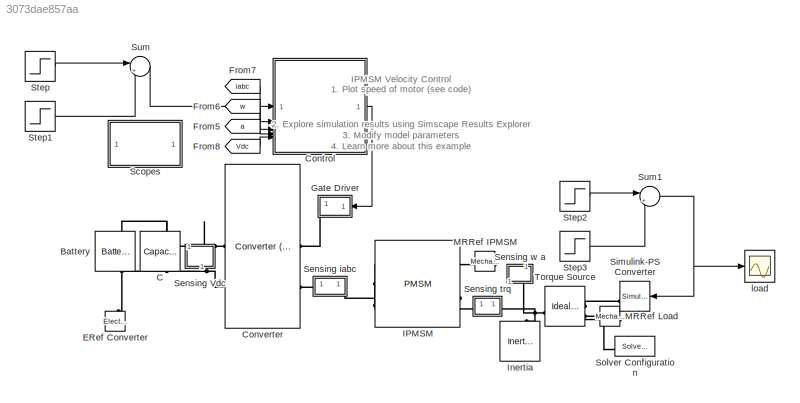
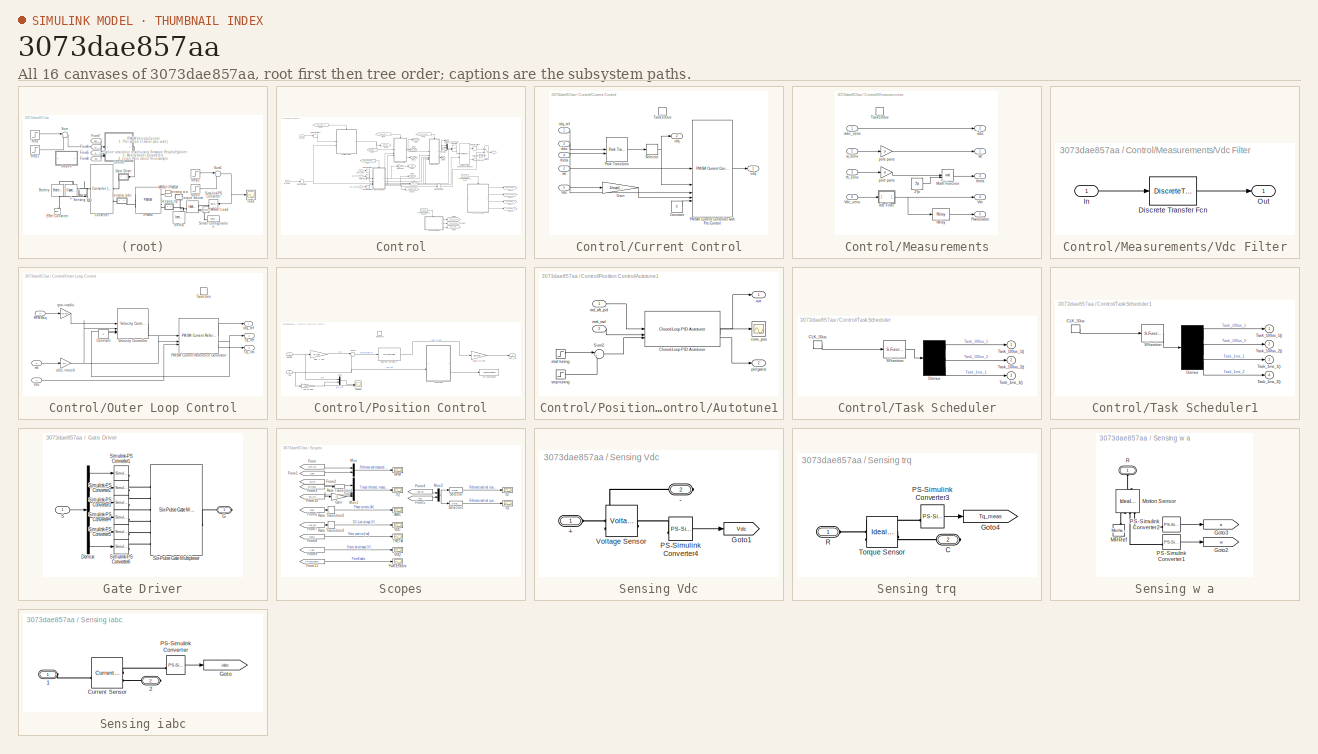
[diagram: thumbnail index - all 16 canvases of the model, root first then tree order]
MODEL slx_3073dae857aa
KIND model
CONFIG AbsTol = auto
CONFIG EnableMultiTasking = on
CONFIG FixedStep = Ts
CONFIG MaxStep = auto
CONFIG MinStep = auto
CONFIG PreLoadFcn = ee_ipmsm_velocity_control_data;
CONFIG RelTol = 1e-3
CONFIG SampleTimeConstraint = Unconstrained
CONFIG SolverName = FixedStepDiscrete
CONFIG StartTime = 0.0
CONFIG StopFcn = ee_addSimlogTimeStamp(bdroot)
CONFIG StopTime = 2
BLOCK [Reference] Battery  REF=batteryecm_lib/Battery
  NameLocation = left
  SourceBlock = batteryecm_lib/Battery
  SourceType = Battery
BLOCK [Reference] C  REF=fl_lib/Electrical/Electrical Elements/Capacitor
  NameLocation = left
  SourceBlock = fl_lib/Electrical/Electrical Elements/Capacitor
  SourceType = Capacitor
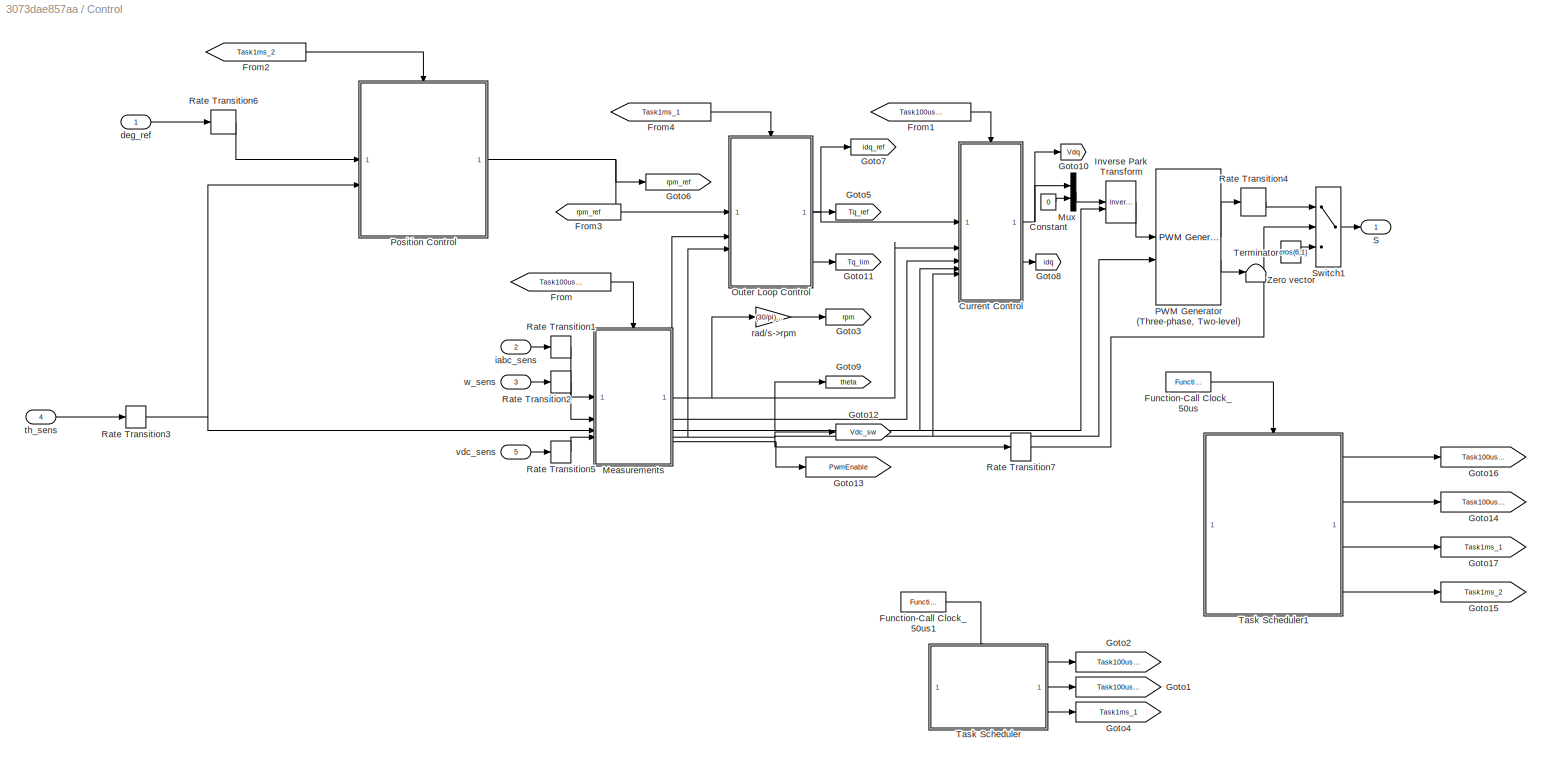
BLOCK [SubSystem] Control
  NameLocation = top
BLOCK [Constant] Control/Constant
  SampleTime = -1
  Value = 0
BLOCK [SubSystem] Control/Current Control
BLOCK [Constant] Control/Current Control/Constant
  SampleTime = -1
  Value = 0
BLOCK [Gain] Control/Current Control/Gain
  Gain = 1/sqrt(3)
BLOCK [Reference] Control/Current Control/PMSM Current Controller with Pre-Control  REF=eePmsmCurrentController/PMSM Current Controller
with Pre-Control
  SourceBlock = eePmsmCurrentController/PMSM Current Controller\nwith Pre-Control
  SourceType = PMSM Current Controller with Pre-Control
BLOCK [Reference] Control/Current Control/Park Transform  REF=eeTransforms/Park Transform
  SourceBlock = eeTransforms/Park Transform
  SourceType = Park Transform
BLOCK [Selector] Control/Current Control/Selector
  IndexOptions = Index vector (dialog)
  Indices = [1 2]
  InputPortWidth = 3
  OutputSizes = 1
BLOCK [TriggerPort] Control/Current Control/Task100us
  PortDimensions = 1
  StatesWhenEnabling = held
  TriggerType = function-call
  VariantControl = Variant
BLOCK [Inport] Control/Current Control/Vdc
  Port = 5
BLOCK [Inport] Control/Current Control/iabc
  Port = 3
BLOCK [Outport] Control/Current Control/idq
  Port = 2
  VectorParamsAs1DForOutWhenUnconnected = off
BLOCK [Inport] Control/Current Control/idq_ref
BLOCK [Inport] Control/Current Control/theta
  Port = 4
BLOCK [Outport] Control/Current Control/vdq
  VectorParamsAs1DForOutWhenUnconnected = off
BLOCK [Inport] Control/Current Control/we
  Port = 2
BLOCK [From] Control/From
  GotoTag = Task100us_1
BLOCK [From] Control/From1
  GotoTag = Task100us_2
BLOCK [From] Control/From2
  GotoTag = Task1ms_2
BLOCK [From] Control/From3
  GotoTag = rpm_ref
  TagVisibility = global
BLOCK [From] Control/From4
  GotoTag = Task1ms_1
BLOCK [Reference] Control/Function-Call Clock_50us  REF=simulink/Ports &
Subsystems/Function-Call
Generator
  SourceBlock = simulink/Ports &\nSubsystems/Function-Call\nGenerator
  SourceType = Function-Call Generator
BLOCK [Reference] Control/Function-Call Clock_50us1  REF=simulink/Ports &
Subsystems/Function-Call
Generator
  Commented = on
  SourceBlock = simulink/Ports &\nSubsystems/Function-Call\nGenerator
  SourceType = Function-Call Generator
BLOCK [Goto] Control/Goto1
  Commented = on
  GotoTag = Task100us_2
BLOCK [Goto] Control/Goto10
  GotoTag = Vdq
  TagVisibility = global
BLOCK [Goto] Control/Goto11
  GotoTag = Tq_lim
  TagVisibility = global
BLOCK [Goto] Control/Goto12
  GotoTag = Vdc_sw
  TagVisibility = global
BLOCK [Goto] Control/Goto13
  GotoTag = PwmEnable
  TagVisibility = global
BLOCK [Goto] Control/Goto14
  GotoTag = Task100us_2
BLOCK [Goto] Control/Goto15
  GotoTag = Task1ms_2
BLOCK [Goto] Control/Goto16
  GotoTag = Task100us_1
BLOCK [Goto] Control/Goto17
  GotoTag = Task1ms_1
BLOCK [Goto] Control/Goto2
  Commented = on
  GotoTag = Task100us_1
BLOCK [Goto] Control/Goto3
  GotoTag = rpm
  TagVisibility = global
BLOCK [Goto] Control/Goto4
  Commented = on
  GotoTag = Task1ms_1
BLOCK [Goto] Control/Goto5
  GotoTag = Tq_ref
  TagVisibility = global
BLOCK [Goto] Control/Goto6
  GotoTag = rpm_ref
  TagVisibility = global
BLOCK [Goto] Control/Goto7
  GotoTag = idq_ref
  TagVisibility = global
BLOCK [Goto] Control/Goto8
  GotoTag = idq
  TagVisibility = global
BLOCK [Goto] Control/Goto9
  GotoTag = theta
  TagVisibility = global
BLOCK [Reference] Control/Inverse Park Transform  REF=eeTransforms/Inverse
Park Transform
  SourceBlock = eeTransforms/Inverse\nPark Transform
  SourceType = Inverse Park Transform
BLOCK [SubSystem] Control/Measurements
BLOCK [Constant] Control/Measurements/2*pi
  SampleTime = -1
  Value = 2*pi
BLOCK [Math] Control/Measurements/Math Function
  Operator = mod
  SignedPower = on
BLOCK [Outport] Control/Measurements/PwmEnable
  Port = 5
  VectorParamsAs1DForOutWhenUnconnected = off
BLOCK [Relay] Control/Measurements/Relay
  OffSwitchValue = 0.5*VDC_VECT(1)
  OnSwitchValue = VDC_VECT(1)
BLOCK [TriggerPort] Control/Measurements/Task100us
  PortDimensions = 1
  StatesWhenEnabling = held
  TriggerType = function-call
  VariantControl = Variant
BLOCK [Outport] Control/Measurements/Vdc
  Port = 4
  VectorParamsAs1DForOutWhenUnconnected = off
BLOCK [SubSystem] Control/Measurements/Vdc Filter
BLOCK [DiscreteTransferFcn] Control/Measurements/Vdc Filter/Discrete Transfer Fcn
  Denominator = den
  InputPortMap = u0
  Numerator = num
BLOCK [Inport] Control/Measurements/Vdc Filter/In
BLOCK [Outport] Control/Measurements/Vdc Filter/Out
  VectorParamsAs1DForOutWhenUnconnected = off
BLOCK [Inport] Control/Measurements/Vdc_sens
  Port = 4
BLOCK [Outport] Control/Measurements/iabc
  Port = 2
  VectorParamsAs1DForOutWhenUnconnected = off
BLOCK [Inport] Control/Measurements/iabc_sens
BLOCK [Gain] Control/Measurements/pole pairs
  Gain = p
BLOCK [Gain] Control/Measurements/pole pairs 
  Gain = p
BLOCK [Inport] Control/Measurements/th_sens
  Port = 3
BLOCK [Outport] Control/Measurements/theta
  Port = 3
  VectorParamsAs1DForOutWhenUnconnected = off
BLOCK [Inport] Control/Measurements/w_sens
  Port = 2
BLOCK [Outport] Control/Measurements/we
  VectorParamsAs1DForOutWhenUnconnected = off
BLOCK [Mux] Control/Mux
  DisplayOption = bar
  Inputs = 2
BLOCK [SubSystem] Control/Outer Loop Control
BLOCK [Constant] Control/Outer Loop Control/Constant
  SampleTime = -1
  Value = 0
BLOCK [Reference] Control/Outer Loop Control/PMSM Current Reference Generator  REF=eePmsmCurrentReferenceGen/PMSM Current Reference
Generator
  SourceBlock = eePmsmCurrentReferenceGen/PMSM Current Reference\nGenerator
  SourceType = PMSM Current Reference Generator
BLOCK [Inport] Control/Outer Loop Control/RPMReq
BLOCK [TriggerPort] Control/Outer Loop Control/Task1ms
  PortDimensions = 1
  StatesWhenEnabling = held
  TriggerType = function-call
  VariantControl = Variant
BLOCK [Outport] Control/Outer Loop Control/Tq_lim
  Port = 3
  VectorParamsAs1DForOutWhenUnconnected = off
BLOCK [Outport] Control/Outer Loop Control/Tq_ref
  Port = 2
  VectorParamsAs1DForOutWhenUnconnected = off
BLOCK [Inport] Control/Outer Loop Control/Vdc
  Port = 3
BLOCK [Reference] Control/Outer Loop Control/Velocity Controller  REF=eeVelocityController/Velocity Controller
  SourceBlock = eeVelocityController/Velocity Controller
  SourceType = Velocity Controller
BLOCK [Gain] Control/Outer Loop Control/elec->mech
  Gain = 1/p
BLOCK [Outport] Control/Outer Loop Control/idq_ref
  VectorParamsAs1DForOutWhenUnconnected = off
BLOCK [Gain] Control/Outer Loop Control/rpm->rad//s
  Gain = (pi/30)
BLOCK [Inport] Control/Outer Loop Control/we
  Port = 2
BLOCK [Reference] Control/PWM Generator (Three-phase, Two-level)  REF=eePwmGeneratorTwoLevel/PWM Generator
(Three-phase, Two-level)
  SourceBlock = eePwmGeneratorTwoLevel/PWM Generator\n(Three-phase, Two-level)
  SourceType = PWM Generator (three-phase, two-level)
BLOCK [SubSystem] Control/Position Control
BLOCK [SubSystem] Control/Position Control/Autotune1
  Commented = on
BLOCK [Reference] Control/Position Control/Autotune1/Closed-Loop PID Autotuner  REF=slctrlblks/Closed-Loop PID Autotuner
  SourceBlock = slctrlblks/Closed-Loop PID Autotuner
  SourceType = ClosedLoopOnlinePIDTuner
BLOCK [Sum] Control/Position Control/Autotune1/Sum2
  Inputs = |++
BLOCK [Scope] Control/Position Control/Autotune1/conv_pos
  Floating = off
  NumInputPorts = 1
  ScopeSpecificationString = Simulink.scopes.TimeScopeBlockCfg('CurrentConfiguration', extmgr.ConfigurationSet(extmgr.Configuration('Core','General UI',true),extmgr.Configuration('Core','Source UI',true),extmgr.Configuration('Sources','WiredSimulink',true,'DataLoggingVariableName','ScopeData1'),extmgr.Configuration('Visuals','Time Domain',true,'SerializedDisplays',{struct('MinYLimReal','-12.49928','MaxYLimReal','112.49353','Y...<+1407ch>
BLOCK [Outport] Control/Position Control/Autotune1/out
BLOCK [Outport] Control/Position Control/Autotune1/pid gains
  NameLocation = top
  Port = 2
BLOCK [Inport] Control/Position Control/Autotune1/rad_aft_pid
BLOCK [Inport] Control/Position Control/Autotune1/real_rad
  Port = 2
BLOCK [Step] Control/Position Control/Autotune1/start tuning
  Time = Tpos_start
BLOCK [Step] Control/Position Control/Autotune1/stop tuning
  After = -1
  Time = Tpos_stop
BLOCK [Reference] Control/Position Control/Discrete Varying P  REF=slpidlib/PID Controller
  LibrarySourceBlock = cstblocks/Linear Parameter Varying/Discrete Varying PID
  SourceBlock = slpidlib/PID Controller
  SourceType = PID 1dof
BLOCK [Mux] Control/Position Control/Mux
  DisplayOption = bar
  Inputs = 2
BLOCK [Scope] Control/Position Control/Position
  Floating = off
  NumInputPorts = 2
  ScopeSpecificationString = Simulink.scopes.TimeScopeBlockCfg('CurrentConfiguration', extmgr.ConfigurationSet(extmgr.Configuration('Core','General UI',true),extmgr.Configuration('Core','Source UI',true),extmgr.Configuration('Sources','WiredSimulink',true,'DataLoggingVariableName','ScopeData1'),extmgr.Configuration('Visuals','Time Domain',true,'SerializedDisplays',{struct('MinYLimReal','-46.5786','MaxYLimReal','19.19445','YLa...<+2024ch>
BLOCK [Sum] Control/Position Control/Sum9
  Inputs = |+-
BLOCK [TriggerPort] Control/Position Control/Task1ms
  PortDimensions = 1
  StatesWhenEnabling = held
  TriggerType = function-call
  VariantControl = Variant
BLOCK [ToWorkspace] Control/Position Control/To Workspace
  Commented = on
  FixptAsFi = on
  MaxDataPoints = inf
  SampleTime = -1
  VariableName = PID_position
BLOCK [Gain] Control/Position Control/deg -> rad
  Gain = pi/180
BLOCK [Inport] Control/Position Control/degRef
BLOCK [Inport] Control/Position Control/rad
  Port = 2
BLOCK [Gain] Control/Position Control/rad to deg
  Gain = 180/pi
BLOCK [Gain] Control/Position Control/rad//s to rpm
  Gain = 60/2*pi
BLOCK [Outport] Control/Position Control/rpm_ref
BLOCK [RateTransition] Control/Rate Transition1
BLOCK [RateTransition] Control/Rate Transition2
BLOCK [RateTransition] Control/Rate Transition3
BLOCK [RateTransition] Control/Rate Transition4
BLOCK [RateTransition] Control/Rate Transition5
BLOCK [RateTransition] Control/Rate Transition6
BLOCK [RateTransition] Control/Rate Transition7
BLOCK [Outport] Control/S
  VectorParamsAs1DForOutWhenUnconnected = off
BLOCK [Switch] Control/Switch1
  Criteria = u2 > Threshold
  InputSameDT = off
  SaturateOnIntegerOverflow = off
BLOCK [SubSystem] Control/Task Scheduler
  Commented = on
  ErrorFcn = Stateflow.Translate.translate
  PermitHierarchicalResolution = ExplicitOnly
  SFBlockType = Chart
  TreatAsAtomicUnit = on
BLOCK [Demux] Control/Task Scheduler/ Demux 
  Outputs = 3
BLOCK [S-Function] Control/Task Scheduler/ SFunction 
  EnableBusSupport = on
  FunctionName = sf_sfun
  PortCounts = [1 1]
  SFcnIsStateOwnerBlock = off
  SFunctionDeploymentMode = off
  Tag = Stateflow S-Function 1
BLOCK [TriggerPort] Control/Task Scheduler/CLK_50us
  ShowOutputPort = on
  TriggerType = function-call
  VariantControl = Variant
BLOCK [Outport] Control/Task Scheduler/Task_100us_1()
  VectorParamsAs1DForOutWhenUnconnected = off
BLOCK [Outport] Control/Task Scheduler/Task_100us_2()
  Port = 2
  VectorParamsAs1DForOutWhenUnconnected = off
BLOCK [Outport] Control/Task Scheduler/Task_1ms_1()
  Port = 3
  VectorParamsAs1DForOutWhenUnconnected = off
BLOCK [SubSystem] Control/Task Scheduler1
  ErrorFcn = Stateflow.Translate.translate
  PermitHierarchicalResolution = ExplicitOnly
  SFBlockType = Chart
  TreatAsAtomicUnit = on
BLOCK [Demux] Control/Task Scheduler1/ Demux 
BLOCK [S-Function] Control/Task Scheduler1/ SFunction 
  EnableBusSupport = on
  FunctionName = sf_sfun
  PortCounts = [1 1]
  SFcnIsStateOwnerBlock = off
  SFunctionDeploymentMode = off
  Tag = Stateflow S-Function 2
BLOCK [TriggerPort] Control/Task Scheduler1/CLK_50us
  ShowOutputPort = on
  TriggerType = function-call
  VariantControl = Variant
BLOCK [Outport] Control/Task Scheduler1/Task_100us_1()
  VectorParamsAs1DForOutWhenUnconnected = off
BLOCK [Outport] Control/Task Scheduler1/Task_100us_2()
  Port = 2
  VectorParamsAs1DForOutWhenUnconnected = off
BLOCK [Outport] Control/Task Scheduler1/Task_1ms_1()
  Port = 3
  VectorParamsAs1DForOutWhenUnconnected = off
BLOCK [Outport] Control/Task Scheduler1/Task_1ms_2()
  Port = 4
BLOCK [Terminator] Control/Terminator
BLOCK [Constant] Control/Zero vector
  Value = zeros(6,1)
BLOCK [Inport] Control/deg_ref
BLOCK [Inport] Control/iabc_sens
  Port = 2
BLOCK [Gain] Control/rad//s->rpm
  Gain = (30/pi)/p
BLOCK [Inport] Control/th_sens
  Port = 4
BLOCK [Inport] Control/vdc_sens
  Port = 5
BLOCK [Inport] Control/w_sens
  Port = 3
BLOCK [Reference] Converter  REF=ee_lib/Semiconductors &
Converters/Converters/Converter
(Three-Phase)
  SourceBlock = ee_lib/Semiconductors &\nConverters/Converters/Converter\n(Three-Phase)
  SourceType = Converter\n(Three-Phase)
BLOCK [Reference] ERef Converter  REF=fl_lib/Electrical/Electrical Elements/Electrical Reference
  SourceBlock = fl_lib/Electrical/Electrical Elements/Electrical Reference
  SourceType = Electrical Reference
BLOCK [From] From5
  GotoTag = a
  TagVisibility = global
BLOCK [From] From6
  GotoTag = w
  TagVisibility = global
BLOCK [From] From7
  GotoTag = iabc
  TagVisibility = global
BLOCK [From] From8
  GotoTag = Vdc
  TagVisibility = global
BLOCK [SubSystem] Gate Driver
  NameLocation = top
BLOCK [Demux] Gate Driver/Demux
  Outputs = 6
BLOCK [PMIOPort] Gate Driver/G
  Side = Right
BLOCK [Inport] Gate Driver/S
BLOCK [Reference] Gate Driver/Simulink-PS Converter1  REF=nesl_utility/Simulink-PS
Converter
  SourceBlock = nesl_utility/Simulink-PS\nConverter
  SourceType = Simulink-PS\nConverter
BLOCK [Reference] Gate Driver/Simulink-PS Converter2  REF=nesl_utility/Simulink-PS
Converter
  SourceBlock = nesl_utility/Simulink-PS\nConverter
  SourceType = Simulink-PS\nConverter
BLOCK [Reference] Gate Driver/Simulink-PS Converter3  REF=nesl_utility/Simulink-PS
Converter
  SourceBlock = nesl_utility/Simulink-PS\nConverter
  SourceType = Simulink-PS\nConverter
BLOCK [Reference] Gate Driver/Simulink-PS Converter4  REF=nesl_utility/Simulink-PS
Converter
  SourceBlock = nesl_utility/Simulink-PS\nConverter
  SourceType = Simulink-PS\nConverter
BLOCK [Reference] Gate Driver/Simulink-PS Converter5  REF=nesl_utility/Simulink-PS
Converter
  SourceBlock = nesl_utility/Simulink-PS\nConverter
  SourceType = Simulink-PS\nConverter
BLOCK [Reference] Gate Driver/Simulink-PS Converter6  REF=nesl_utility/Simulink-PS
Converter
  SourceBlock = nesl_utility/Simulink-PS\nConverter
  SourceType = Simulink-PS\nConverter
BLOCK [Reference] Gate Driver/Six-Pulse Gate Multiplexer  REF=ee_lib/Semiconductors &
Converters/Converters/Six-Pulse Gate
Multiplexer
  SourceBlock = ee_lib/Semiconductors &\nConverters/Converters/Six-Pulse Gate\nMultiplexer
  SourceType = Six-Pulse Gate\nMultiplexer
BLOCK [Reference] IPMSM  REF=ee_lib/Electromechanical/Permanent Magnet/PMSM
  AttributesFormatString = 35 kW
  SourceBlock = ee_lib/Electromechanical/Permanent Magnet/PMSM
  SourceType = PMSM
BLOCK [Reference] Inertia  REF=fl_lib/Mechanical/Rotational Elements/Inertia
  NameLocation = left
  SourceBlock = fl_lib/Mechanical/Rotational Elements/Inertia
  SourceType = Inertia
BLOCK [Reference] MRRef IPMSM  REF=fl_lib/Mechanical/Rotational Elements/Mechanical
Rotational Reference
  NameLocation = top
  SourceBlock = fl_lib/Mechanical/Rotational Elements/Mechanical\nRotational Reference
  SourceType = Mechanical\nRotational Reference
BLOCK [Reference] MRRef Load  REF=fl_lib/Mechanical/Rotational Elements/Mechanical
Rotational Reference
  NameLocation = top
  SourceBlock = fl_lib/Mechanical/Rotational Elements/Mechanical\nRotational Reference
  SourceType = Mechanical\nRotational Reference
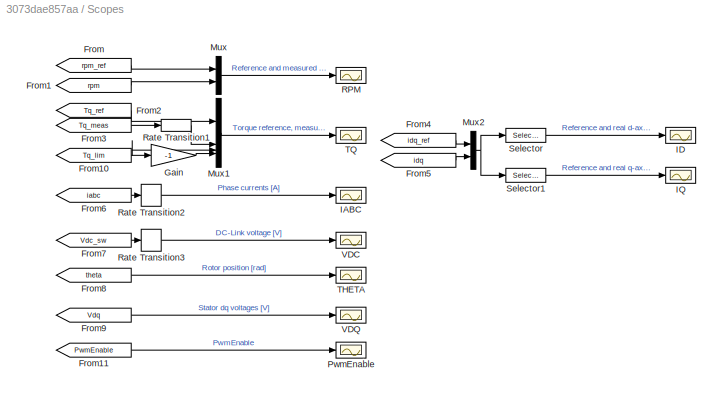
BLOCK [SubSystem] Scopes
BLOCK [From] Scopes/From
  GotoTag = rpm_ref
  TagVisibility = global
BLOCK [From] Scopes/From1
  GotoTag = rpm
  TagVisibility = global
BLOCK [From] Scopes/From10
  GotoTag = Tq_lim
  TagVisibility = global
BLOCK [From] Scopes/From11
  GotoTag = PwmEnable
  TagVisibility = global
BLOCK [From] Scopes/From2
  GotoTag = Tq_ref
  TagVisibility = global
BLOCK [From] Scopes/From3
  GotoTag = Tq_meas
  TagVisibility = global
BLOCK [From] Scopes/From4
  GotoTag = idq_ref
  TagVisibility = global
BLOCK [From] Scopes/From5
  GotoTag = idq
  TagVisibility = global
BLOCK [From] Scopes/From6
  GotoTag = iabc
  TagVisibility = global
BLOCK [From] Scopes/From7
  GotoTag = Vdc_sw
  TagVisibility = global
BLOCK [From] Scopes/From8
  GotoTag = theta
  TagVisibility = global
BLOCK [From] Scopes/From9
  GotoTag = Vdq
  TagVisibility = global
BLOCK [Gain] Scopes/Gain
  Gain = -1
BLOCK [Scope] Scopes/IABC
  Floating = off
  NumInputPorts = 1
  ScopeSpecificationString = Simulink.scopes.TimeScopeBlockCfg('CurrentConfiguration', extmgr.ConfigurationSet(extmgr.Configuration('Core','General UI',true),extmgr.Configuration('Core','Source UI',true),extmgr.Configuration('Sources','WiredSimulink',true,'DataLoggingVariableName','ScopeData1','DataLoggingSaveFormat','Array','DataLoggingDecimation','1','DataLoggingDecimateData',true),extmgr.Configuration('Visuals','Time Domai...<+1584ch>
BLOCK [Scope] Scopes/ID
  Floating = off
  NumInputPorts = 1
  ScopeSpecificationString = Simulink.scopes.TimeScopeBlockCfg('CurrentConfiguration', extmgr.ConfigurationSet(extmgr.Configuration('Core','General UI',true),extmgr.Configuration('Core','Source UI',true),extmgr.Configuration('Sources','WiredSimulink',true,'DataLoggingVariableName','ScopeData2','DataLoggingSaveFormat','Array','DataLoggingDecimation','1','DataLoggingDecimateData',true),extmgr.Configuration('Visuals','Time Domai...<+1694ch>
BLOCK [Scope] Scopes/IQ
  Floating = off
  NumInputPorts = 1
  ScopeSpecificationString = Simulink.scopes.TimeScopeBlockCfg('CurrentConfiguration', extmgr.ConfigurationSet(extmgr.Configuration('Core','General UI',true),extmgr.Configuration('Core','Source UI',true),extmgr.Configuration('Sources','WiredSimulink',true,'DataLoggingVariableName','ScopeData3','DataLoggingSaveFormat','Array','DataLoggingDecimation','1','DataLoggingDecimateData',true),extmgr.Configuration('Visuals','Time Domai...<+1717ch>
BLOCK [Mux] Scopes/Mux
  DisplayOption = bar
  Inputs = 2
BLOCK [Mux] Scopes/Mux1
  DisplayOption = bar
BLOCK [Mux] Scopes/Mux2
  DisplayOption = bar
  Inputs = 2
BLOCK [Scope] Scopes/PwmEnable
  Floating = off
  NumInputPorts = 1
  ScopeSpecificationString = Simulink.scopes.TimeScopeBlockCfg('CurrentConfiguration', extmgr.ConfigurationSet(extmgr.Configuration('Core','General UI',true),extmgr.Configuration('Core','Source UI',true),extmgr.Configuration('Sources','WiredSimulink',true,'DataLoggingVariableName','ScopeData4','DataLoggingSaveFormat','Array','DataLoggingDecimation','1','DataLoggingDecimateData',true),extmgr.Configuration('Visuals','Time Domai...<+1501ch>
BLOCK [Scope] Scopes/RPM
  Floating = off
  NumInputPorts = 1
  ScopeSpecificationString = Simulink.scopes.TimeScopeBlockCfg('CurrentConfiguration', extmgr.ConfigurationSet(extmgr.Configuration('Core','General UI',true),extmgr.Configuration('Core','Source UI',true),extmgr.Configuration('Sources','WiredSimulink',true,'DataLoggingVariableName','ScopeData5','DataLoggingSaveFormat','Array','DataLoggingDecimation','1','DataLoggingDecimateData',true),extmgr.Configuration('Visuals','Time Domai...<+1628ch>
BLOCK [RateTransition] Scopes/Rate Transition1
BLOCK [RateTransition] Scopes/Rate Transition2
  OutPortSampleTime = 1e-4
BLOCK [RateTransition] Scopes/Rate Transition3
  OutPortSampleTime = 1e-4
BLOCK [Selector] Scopes/Selector
  IndexOptions = Index vector (dialog)
  Indices = [1 3]
  InputPortWidth = 4
  OutputSizes = 1
BLOCK [Selector] Scopes/Selector1
  IndexOptions = Index vector (dialog)
  Indices = [2 4]
  InputPortWidth = 4
  OutputSizes = 1
BLOCK [Scope] Scopes/THETA
  Floating = off
  NumInputPorts = 1
  ScopeSpecificationString = Simulink.scopes.TimeScopeBlockCfg('CurrentConfiguration', extmgr.ConfigurationSet(extmgr.Configuration('Core','General UI',true),extmgr.Configuration('Core','Source UI',true),extmgr.Configuration('Sources','WiredSimulink',true,'DataLoggingVariableName','ScopeData6','DataLoggingSaveFormat','Array','DataLoggingDecimation','1','DataLoggingDecimateData',true),extmgr.Configuration('Visuals','Time Domai...<+1529ch>
BLOCK [Scope] Scopes/TQ
  Floating = off
  NumInputPorts = 1
  ScopeSpecificationString = Simulink.scopes.TimeScopeBlockCfg('CurrentConfiguration', extmgr.ConfigurationSet(extmgr.Configuration('Core','General UI',true),extmgr.Configuration('Core','Source UI',true),extmgr.Configuration('Sources','WiredSimulink',true,'DataLoggingVariableName','ScopeData7','DataLoggingSaveFormat','Array','DataLoggingDecimation','1','DataLoggingDecimateData',true),extmgr.Configuration('Visuals','Time Domai...<+1740ch>
BLOCK [Scope] Scopes/VDC
  Floating = off
  NumInputPorts = 1
  ScopeSpecificationString = Simulink.scopes.TimeScopeBlockCfg('CurrentConfiguration', extmgr.ConfigurationSet(extmgr.Configuration('Core','General UI',true),extmgr.Configuration('Core','Source UI',true),extmgr.Configuration('Sources','WiredSimulink',true,'DataLoggingVariableName','ScopeData8','DataLoggingSaveFormat','Array','DataLoggingDecimation','1','DataLoggingDecimateData',true),extmgr.Configuration('Visuals','Time Domai...<+1533ch>
BLOCK [Scope] Scopes/VDQ
  Floating = off
  NumInputPorts = 1
  ScopeSpecificationString = Simulink.scopes.TimeScopeBlockCfg('CurrentConfiguration', extmgr.ConfigurationSet(extmgr.Configuration('Core','General UI',true),extmgr.Configuration('Core','Source UI',true),extmgr.Configuration('Sources','WiredSimulink',true,'DataLoggingSaveFormat','Array','DataLoggingDecimation','1','DataLoggingDecimateData',true),extmgr.Configuration('Visuals','Time Domain',true,'SerializedDisplays',{struct('M...<+1530ch>
BLOCK [SubSystem] Sensing Vdc
BLOCK [PMIOPort] Sensing Vdc/+
  Side = Left
BLOCK [PMIOPort] Sensing Vdc/-
  Port = 2
  Side = Right
BLOCK [Goto] Sensing Vdc/Goto1
  GotoTag = Vdc
  TagVisibility = global
BLOCK [Reference] Sensing Vdc/PS-Simulink Converter4  REF=nesl_utility/PS-Simulink
Converter
  SourceBlock = nesl_utility/PS-Simulink\nConverter
  SourceType = PS-Simulink\nConverter
BLOCK [Reference] Sensing Vdc/Voltage Sensor  REF=fl_lib/Electrical/Electrical Sensors/Voltage Sensor
  SourceBlock = fl_lib/Electrical/Electrical Sensors/Voltage Sensor
  SourceType = Voltage Sensor
BLOCK [SubSystem] Sensing iabc
BLOCK [PMIOPort] Sensing iabc/1
  Side = Left
BLOCK [PMIOPort] Sensing iabc/2
  Port = 2
  Side = Right
BLOCK [Reference] Sensing iabc/Current Sensor  REF=ee_lib/Sensors &
Transducers/Current Sensor
(Three-Phase)
  SourceBlock = ee_lib/Sensors &\nTransducers/Current Sensor\n(Three-Phase)
  SourceType = Current Sensor\n(Three-Phase)
BLOCK [Goto] Sensing iabc/Goto
  GotoTag = iabc
  TagVisibility = global
BLOCK [Reference] Sensing iabc/PS-Simulink Converter  REF=nesl_utility/PS-Simulink
Converter
  SourceBlock = nesl_utility/PS-Simulink\nConverter
  SourceType = PS-Simulink\nConverter
BLOCK [SubSystem] Sensing trq
BLOCK [PMIOPort] Sensing trq/C
  Port = 2
  Side = Right
BLOCK [Goto] Sensing trq/Goto4
  GotoTag = Tq_meas
  TagVisibility = global
BLOCK [Reference] Sensing trq/PS-Simulink Converter3  REF=nesl_utility/PS-Simulink
Converter
  SourceBlock = nesl_utility/PS-Simulink\nConverter
  SourceType = PS-Simulink\nConverter
BLOCK [PMIOPort] Sensing trq/R
  Side = Left
BLOCK [Reference] Sensing trq/Torque Sensor  REF=fl_lib/Mechanical/Mechanical Sensors/Ideal Torque Sensor
  SourceBlock = fl_lib/Mechanical/Mechanical Sensors/Ideal Torque Sensor
  SourceType = Ideal Torque Sensor
BLOCK [SubSystem] Sensing w a
BLOCK [Goto] Sensing w a/Goto2
  GotoTag = w
  TagVisibility = global
BLOCK [Goto] Sensing w a/Goto3
  GotoTag = a
  TagVisibility = global
BLOCK [Reference] Sensing w a/MRRef  REF=fl_lib/Mechanical/Rotational Elements/Mechanical
Rotational Reference
  NameLocation = left
  SourceBlock = fl_lib/Mechanical/Rotational Elements/Mechanical\nRotational Reference
  SourceType = Mechanical\nRotational Reference
BLOCK [Reference] Sensing w a/Motion Sensor  REF=fl_lib/Mechanical/Mechanical Sensors/Ideal Rotational
Motion Sensor
  SourceBlock = fl_lib/Mechanical/Mechanical Sensors/Ideal Rotational\nMotion Sensor
  SourceType = Ideal Rotational\nMotion Sensor
BLOCK [Reference] Sensing w a/PS-Simulink Converter1  REF=nesl_utility/PS-Simulink
Converter
  SourceBlock = nesl_utility/PS-Simulink\nConverter
  SourceType = PS-Simulink\nConverter
BLOCK [Reference] Sensing w a/PS-Simulink Converter2  REF=nesl_utility/PS-Simulink
Converter
  SourceBlock = nesl_utility/PS-Simulink\nConverter
  SourceType = PS-Simulink\nConverter
BLOCK [PMIOPort] Sensing w a/R
  Side = Left
BLOCK [Reference] Simulink-PS Converter  REF=nesl_utility/Simulink-PS
Converter
  SourceBlock = nesl_utility/Simulink-PS\nConverter
  SourceType = Simulink-PS\nConverter
BLOCK [Reference] Solver Configuration  REF=nesl_utility/Solver
Configuration
  SourceBlock = nesl_utility/Solver\nConfiguration
  SourceType = Solver\nConfiguration
BLOCK [Step] Step
  After = 10
  SampleTime = 0
  Time = 0.5
BLOCK [Step] Step1
  After = 50
  SampleTime = 0
BLOCK [Step] Step2
  After = 3
  SampleTime = 0
  Time = 0
BLOCK [Step] Step3
  After = 50
  SampleTime = 0
  Time = 0.8
BLOCK [Sum] Sum
  Inputs = |+-
BLOCK [Sum] Sum1
  Inputs = |++
BLOCK [Reference] Torque Source  REF=fl_lib/Mechanical/Mechanical Sources/Ideal Torque Source
  SourceBlock = fl_lib/Mechanical/Mechanical Sources/Ideal Torque Source
  SourceType = Ideal Torque Source
BLOCK [Scope] load
  Floating = off
  NumInputPorts = 1
  ScopeSpecificationString = Simulink.scopes.TimeScopeBlockCfg('CurrentConfiguration', extmgr.ConfigurationSet(extmgr.Configuration('Core','General UI',true),extmgr.Configuration('Core','Source UI',true),extmgr.Configuration('Sources','WiredSimulink',true,'DataLoggingVariableName','ScopeData1'),extmgr.Configuration('Visuals','Time Domain',true,'SerializedDisplays',{struct('MinYLimReal','-3.25','MaxYLimReal','59.25','YLabelRea...<+1406ch>
ANNOTATION (root): 1. Plot speed of motor ( see code ) 2. Explore simulation results using Simscape Results Explorer 3. Modify model parameters 4. Learn more about this example
ANNOTATION (root): IPMSM Velocity Control
LINE Control/Constant:1 -> Control/Mux:2
LINE Control/Current Control/Constant:1 -> Control/Current Control/PMSM Current Controller with Pre-Control:5
LINE Control/Current Control/Gain:1 -> Control/Current Control/PMSM Current Controller with Pre-Control:4
LINE Control/Current Control/PMSM Current Controller with Pre-Control:1 -> Control/Current Control/vdq:1
LINE Control/Current Control/Park Transform:1 -> Control/Current Control/Selector:1
NET Control/Current Control/Selector:1 -> Control/Current Control/PMSM Current Controller with Pre-Control:2, Control/Current Control/idq:1
LINE Control/Current Control/Vdc:1 -> Control/Current Control/Gain:1
LINE Control/Current Control/iabc:1 -> Control/Current Control/Park Transform:1
LINE Control/Current Control/idq_ref:1 -> Control/Current Control/PMSM Current Controller with Pre-Control:1
LINE Control/Current Control/theta:1 -> Control/Current Control/Park Transform:2
LINE Control/Current Control/we:1 -> Control/Current Control/PMSM Current Controller with Pre-Control:3
NET Control/Current Control:1 -> Control/Goto10:1, Control/Mux:1
LINE Control/Current Control:2 -> Control/Goto8:1
LINE Control/From1:1 -> Control/Current Control:trigger
LINE Control/From2:1 -> Control/Position Control:trigger
LINE Control/From4:1 -> Control/Outer Loop Control:trigger
LINE Control/From:1 -> Control/Measurements:trigger
LINE Control/Function-Call Clock_50us1:1 -> Control/Task Scheduler:trigger
LINE Control/Function-Call Clock_50us:1 -> Control/Task Scheduler1:trigger
LINE Control/Inverse Park Transform:1 -> Control/PWM Generator (Three-phase, Two-level):1
LINE Control/Measurements/2*pi:1 -> Control/Measurements/Math Function:2
LINE Control/Measurements/Math Function:1 -> Control/Measurements/theta:1
LINE Control/Measurements/Relay:1 -> Control/Measurements/PwmEnable:1
LINE Control/Measurements/Vdc Filter/Discrete Transfer Fcn:1 -> Control/Measurements/Vdc Filter/Out:1
LINE Control/Measurements/Vdc Filter/In:1 -> Control/Measurements/Vdc Filter/Discrete Transfer Fcn:1
NET Control/Measurements/Vdc Filter:1 -> Control/Measurements/Relay:1, Control/Measurements/Vdc:1
LINE Control/Measurements/Vdc_sens:1 -> Control/Measurements/Vdc Filter:1
LINE Control/Measurements/iabc_sens:1 -> Control/Measurements/iabc:1
LINE Control/Measurements/pole pairs :1 -> Control/Measurements/Math Function:1
LINE Control/Measurements/pole pairs:1 -> Control/Measurements/we:1
LINE Control/Measurements/th_sens:1 -> Control/Measurements/pole pairs :1
LINE Control/Measurements/w_sens:1 -> Control/Measurements/pole pairs:1
NET Control/Measurements:1 -> Control/Current Control:2, Control/Outer Loop Control:2, Control/rad//s->rpm:1
LINE Control/Measurements:2 -> Control/Current Control:3
NET Control/Measurements:3 -> Control/Current Control:4, Control/Goto9:1, Control/Inverse Park Transform:2
NET Control/Measurements:4 -> Control/Current Control:5, Control/Goto12:1, Control/Outer Loop Control:3, Control/PWM Generator (Three-phase, Two-level):2
NET Control/Measurements:5 -> Control/Goto13:1, Control/Rate Transition7:1
LINE Control/Mux:1 -> Control/Inverse Park Transform:1
LINE Control/Outer Loop Control/Constant:1 -> Control/Outer Loop Control/Velocity Controller:4
LINE Control/Outer Loop Control/PMSM Current Reference Generator:1 -> Control/Outer Loop Control/idq_ref:1
NET Control/Outer Loop Control/PMSM Current Reference Generator:2 -> Control/Outer Loop Control/Tq_ref:1, Control/Outer Loop Control/Velocity Controller:3
LINE Control/Outer Loop Control/PMSM Current Reference Generator:3 -> Control/Outer Loop Control/Tq_lim:1
LINE Control/Outer Loop Control/RPMReq:1 -> Control/Outer Loop Control/rpm->rad//s:1
LINE Control/Outer Loop Control/Vdc:1 -> Control/Outer Loop Control/PMSM Current Reference Generator:3
LINE Control/Outer Loop Control/Velocity Controller:1 -> Control/Outer Loop Control/PMSM Current Reference Generator:1
NET Control/Outer Loop Control/elec->mech:1 -> Control/Outer Loop Control/PMSM Current Reference Generator:2, Control/Outer Loop Control/Velocity Controller:2
LINE Control/Outer Loop Control/rpm->rad//s:1 -> Control/Outer Loop Control/Velocity Controller:1
LINE Control/Outer Loop Control/we:1 -> Control/Outer Loop Control/elec->mech:1
NET Control/Outer Loop Control:1 -> Control/Current Control:1, Control/Goto7:1
LINE Control/Outer Loop Control:2 -> Control/Goto5:1
LINE Control/Outer Loop Control:3 -> Control/Goto11:1
LINE Control/PWM Generator (Three-phase, Two-level):1 -> Control/Rate Transition4:1
LINE Control/PWM Generator (Three-phase, Two-level):2 -> Control/Terminator:1
LINE Control/Position Control/Autotune1/Closed-Loop PID Autotuner:1 -> Control/Position Control/Autotune1/out:1
LINE Control/Position Control/Autotune1/Closed-Loop PID Autotuner:2 -> Control/Position Control/Autotune1/conv_pos:1
LINE Control/Position Control/Autotune1/Closed-Loop PID Autotuner:3 -> Control/Position Control/Autotune1/pid gains:1
LINE Control/Position Control/Autotune1/Sum2:1 -> Control/Position Control/Autotune1/Closed-Loop PID Autotuner:3
LINE Control/Position Control/Autotune1/rad_aft_pid:1 -> Control/Position Control/Autotune1/Closed-Loop PID Autotuner:1
LINE Control/Position Control/Autotune1/real_rad:1 -> Control/Position Control/Autotune1/Closed-Loop PID Autotuner:2
LINE Control/Position Control/Autotune1/start tuning:1 -> Control/Position Control/Autotune1/Sum2:1
LINE Control/Position Control/Autotune1/stop tuning:1 -> Control/Position Control/Autotune1/Sum2:2
LINE Control/Position Control/Autotune1:2 -> Control/Position Control/To Workspace:1
LINE Control/Position Control/Discrete Varying P:1 -> Control/Position Control/rad//s to rpm:1
LINE Control/Position Control/Mux:1 -> Control/Position Control/Position:1
LINE Control/Position Control/Sum9:1 -> Control/Position Control/Discrete Varying P:1
LINE Control/Position Control/deg -> rad:1 -> Control/Position Control/Sum9:1
NET Control/Position Control/degRef:1 -> Control/Position Control/Mux:1, Control/Position Control/deg -> rad:1
NET Control/Position Control/rad to deg:1 -> Control/Position Control/Mux:2, Control/Position Control/Position:2
LINE Control/Position Control/rad//s to rpm:1 -> Control/Position Control/rpm_ref:1
NET Control/Position Control/rad:1 -> Control/Position Control/Autotune1:2, Control/Position Control/Sum9:2, Control/Position Control/rad to deg:1
NET Control/Position Control:1 -> Control/Goto6:1, Control/Outer Loop Control:1
LINE Control/Rate Transition1:1 -> Control/Measurements:1
LINE Control/Rate Transition2:1 -> Control/Measurements:2
NET Control/Rate Transition3:1 -> Control/Measurements:3, Control/Position Control:2
LINE Control/Rate Transition4:1 -> Control/Switch1:1
LINE Control/Rate Transition5:1 -> Control/Measurements:4
LINE Control/Rate Transition6:1 -> Control/Position Control:1
LINE Control/Rate Transition7:1 -> Control/Switch1:2
LINE Control/Switch1:1 -> Control/S:1
LINE Control/Task Scheduler1:1 -> Control/Goto16:1
LINE Control/Task Scheduler1:2 -> Control/Goto14:1
LINE Control/Task Scheduler1:3 -> Control/Goto17:1
LINE Control/Task Scheduler1:4 -> Control/Goto15:1
LINE Control/Task Scheduler:1 -> Control/Goto2:1
LINE Control/Task Scheduler:2 -> Control/Goto1:1
LINE Control/Task Scheduler:3 -> Control/Goto4:1
LINE Control/Zero vector:1 -> Control/Switch1:3
LINE Control/deg_ref:1 -> Control/Rate Transition6:1
LINE Control/iabc_sens:1 -> Control/Rate Transition1:1
LINE Control/rad//s->rpm:1 -> Control/Goto3:1
LINE Control/th_sens:1 -> Control/Rate Transition3:1
LINE Control/vdc_sens:1 -> Control/Rate Transition5:1
LINE Control/w_sens:1 -> Control/Rate Transition2:1
LINE Control:1 -> Gate Driver:1
LINE From5:1 -> Control:4
LINE From6:1 -> Control:3
LINE From7:1 -> Control:2
LINE From8:1 -> Control:5
LINE Gate Driver/Demux:1 -> Gate Driver/Simulink-PS Converter1:1
LINE Gate Driver/Demux:2 -> Gate Driver/Simulink-PS Converter2:1
LINE Gate Driver/Demux:3 -> Gate Driver/Simulink-PS Converter3:1
LINE Gate Driver/Demux:4 -> Gate Driver/Simulink-PS Converter4:1
LINE Gate Driver/Demux:5 -> Gate Driver/Simulink-PS Converter5:1
LINE Gate Driver/Demux:6 -> Gate Driver/Simulink-PS Converter6:1
LINE Gate Driver/S:1 -> Gate Driver/Demux:1
NET Scopes/From10:1 -> Scopes/Gain:1, Scopes/Mux1:3
LINE Scopes/From11:1 -> Scopes/PwmEnable:1
LINE Scopes/From1:1 -> Scopes/Mux:2
LINE Scopes/From2:1 -> Scopes/Mux1:1
LINE Scopes/From3:1 -> Scopes/Rate Transition1:1
LINE Scopes/From4:1 -> Scopes/Mux2:1
LINE Scopes/From5:1 -> Scopes/Mux2:2
LINE Scopes/From6:1 -> Scopes/Rate Transition2:1
LINE Scopes/From7:1 -> Scopes/Rate Transition3:1
LINE Scopes/From8:1 -> Scopes/THETA:1
LINE Scopes/From9:1 -> Scopes/VDQ:1
LINE Scopes/From:1 -> Scopes/Mux:1
LINE Scopes/Gain:1 -> Scopes/Mux1:4
LINE Scopes/Mux1:1 -> Scopes/TQ:1
NET Scopes/Mux2:1 -> Scopes/Selector1:1, Scopes/Selector:1
LINE Scopes/Mux:1 -> Scopes/RPM:1
LINE Scopes/Rate Transition1:1 -> Scopes/Mux1:2
LINE Scopes/Rate Transition2:1 -> Scopes/IABC:1
LINE Scopes/Rate Transition3:1 -> Scopes/VDC:1
LINE Scopes/Selector1:1 -> Scopes/IQ:1
LINE Scopes/Selector:1 -> Scopes/ID:1
LINE Sensing Vdc/PS-Simulink Converter4:1 -> Sensing Vdc/Goto1:1
LINE Sensing iabc/PS-Simulink Converter:1 -> Sensing iabc/Goto:1
LINE Sensing trq/PS-Simulink Converter3:1 -> Sensing trq/Goto4:1
LINE Sensing w a/PS-Simulink Converter1:1 -> Sensing w a/Goto2:1
LINE Sensing w a/PS-Simulink Converter2:1 -> Sensing w a/Goto3:1
LINE Step1:1 -> Sum:2
LINE Step2:1 -> Sum1:1
LINE Step3:1 -> Sum1:2
LINE Step:1 -> Sum:1
NET Sum1:1 -> Simulink-PS Converter:1, load:1
LINE Sum:1 -> Control:1
PNET net1: Battery:LConn1 -- C:LConn1 -- Converter:RConn1 -- Sensing Vdc:LConn1
PNET net2: Battery:RConn1 -- C:RConn1 -- Converter:RConn2 -- ERef Converter:LConn1 -- Sensing Vdc:RConn1
PLINE Converter:LConn1 -- Gate Driver:RConn1
PLINE Converter:LConn2 -- Sensing iabc:LConn1
PLINE Gate Driver/G:RConn1 -- Gate Driver/Six-Pulse Gate Multiplexer:RConn1
PLINE Gate Driver/Simulink-PS Converter1:RConn1 -- Gate Driver/Six-Pulse Gate Multiplexer:LConn1
PLINE Gate Driver/Simulink-PS Converter2:RConn1 -- Gate Driver/Six-Pulse Gate Multiplexer:LConn2
PLINE Gate Driver/Simulink-PS Converter3:RConn1 -- Gate Driver/Six-Pulse Gate Multiplexer:LConn3
PLINE Gate Driver/Simulink-PS Converter4:RConn1 -- Gate Driver/Six-Pulse Gate Multiplexer:LConn4
PLINE Gate Driver/Simulink-PS Converter5:RConn1 -- Gate Driver/Six-Pulse Gate Multiplexer:LConn5
PLINE Gate Driver/Simulink-PS Converter6:RConn1 -- Gate Driver/Six-Pulse Gate Multiplexer:LConn6
PLINE IPMSM:LConn1 -- Sensing iabc:RConn1
PLINE IPMSM:RConn1 -- Sensing trq:LConn1
PLINE IPMSM:RConn2 -- MRRef IPMSM:LConn1
PNET net3: Inertia:LConn1 -- Sensing trq:RConn1 -- Sensing w a:LConn1 -- Torque Source:LConn1
PNET net4: MRRef Load:LConn1 -- Solver Configuration:RConn1 -- Torque Source:RConn2
PLINE Sensing Vdc/+:RConn1 -- Sensing Vdc/Voltage Sensor:LConn1
PLINE Sensing Vdc/-:RConn1 -- Sensing Vdc/Voltage Sensor:RConn2
PLINE Sensing Vdc/PS-Simulink Converter4:LConn1 -- Sensing Vdc/Voltage Sensor:RConn1
PLINE Sensing iabc/1:RConn1 -- Sensing iabc/Current Sensor:LConn1
PLINE Sensing iabc/2:RConn1 -- Sensing iabc/Current Sensor:RConn2
PLINE Sensing iabc/Current Sensor:RConn1 -- Sensing iabc/PS-Simulink Converter:LConn1
PLINE Sensing trq/C:RConn1 -- Sensing trq/Torque Sensor:RConn1
PLINE Sensing trq/PS-Simulink Converter3:LConn1 -- Sensing trq/Torque Sensor:RConn2
PLINE Sensing trq/R:RConn1 -- Sensing trq/Torque Sensor:LConn1
PLINE Sensing w a/MRRef:LConn1 -- Sensing w a/Motion Sensor:RConn1
PLINE Sensing w a/Motion Sensor:LConn1 -- Sensing w a/R:RConn1
PLINE Sensing w a/Motion Sensor:RConn2 -- Sensing w a/PS-Simulink Converter1:LConn1
PLINE Sensing w a/Motion Sensor:RConn3 -- Sensing w a/PS-Simulink Converter2:LConn1
PLINE Simulink-PS Converter:RConn1 -- Torque Source:RConn1
note: NET lines group one-source signal fan-out (src -> all destinations, sorted); 1:1 wires keep LINE; PNET lines group multi-terminal physical nets as a canonical sorted terminal list (undirected conserving connections); 2-terminal nets keep the pairwise PLINE form
CHART Control/Task Scheduler states=0 transitions=10
CHART Control/Task Scheduler1 states=0 transitions=12
CHART  states=0 transitions=0
CHART  states=0 transitions=0
